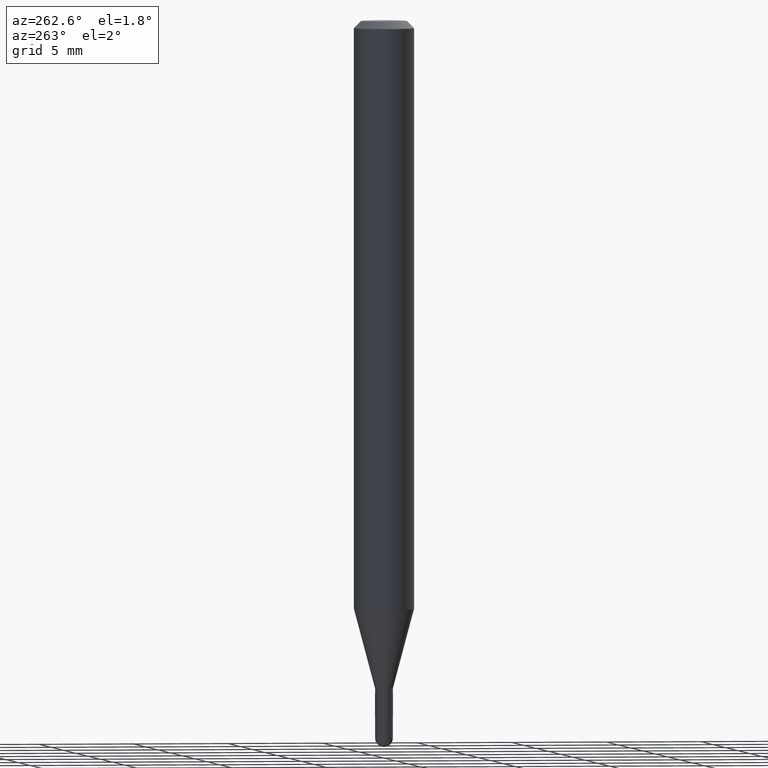
[diagram: clean part render]
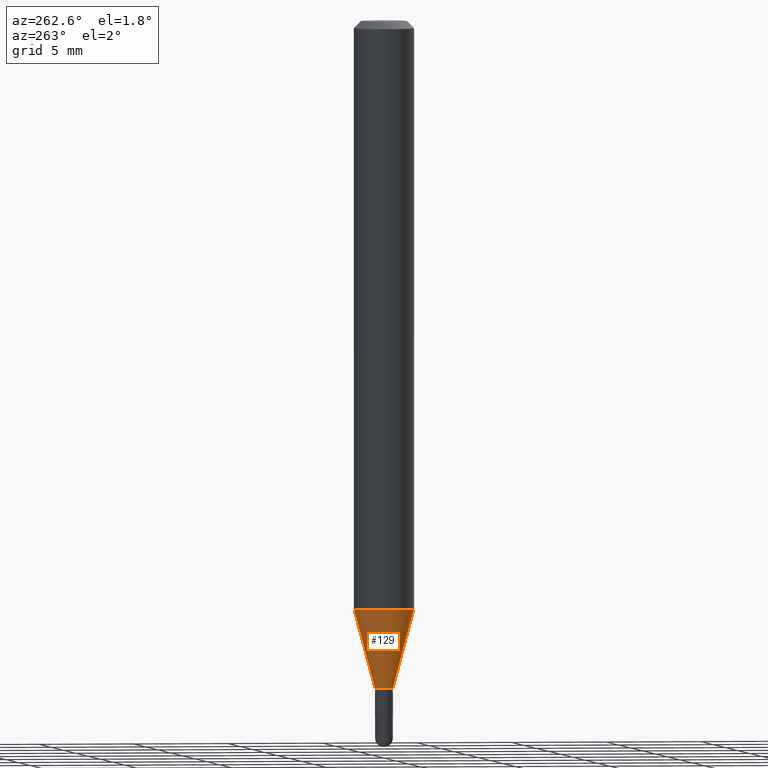
[diagram: same view with one face highlighted and labeled with its STEP entity id]
A machine part, auxiliary view. The second image highlights one B-rep face of the part: STEP entity #129.
In plain terms, the highlighted conical surface has half-angle 15 deg.
Its self-contained STEP definition (entity closure, byte-faithful):
#3 = CARTESIAN_POINT ( 'NONE',  ( -1.291848095371616572E-16, -0.01850000000000473835, -1.379000000000000226 ) ) ;
#8 = VERTEX_POINT ( 'NONE', #439 ) ;
#18 = VECTOR ( 'NONE', #106, 39.37007874015748143 ) ;
#38 = ORIENTED_EDGE ( 'NONE', *, *, #450, .F. ) ;
#58 = AXIS2_PLACEMENT_3D ( 'NONE', #400, #346, #384 ) ;
#76 = DIRECTION ( 'NONE',  ( -1.807323732225330928E-15, -0.2588190451025182970, 0.9659258262890689783 ) ) ;
#88 = DIRECTION ( 'NONE',  ( -2.445457916988369542E-29, 3.491496932792690860E-15, 1.000000000000000000 ) ) ;
#92 = CIRCLE ( 'NONE', #231, 0.06250000000000000000 ) ;
#104 = ORIENTED_EDGE ( 'NONE', *, *, #147, .T. ) ;
#106 = DIRECTION ( 'NONE',  ( 1.839019923739601104E-15, 0.2588190451025250693, 0.9659258262890670910 ) ) ;
#118 = CARTESIAN_POINT ( 'NONE',  ( 3.372286467526962269E-29, -4.814774270321121569E-15, -1.379000000000000226 ) ) ;
#129 = ADVANCED_FACE ( 'NONE', ( #237 ), #440, .T. ) ;
#147 = EDGE_CURVE ( 'NONE', #8, #150, #421, .T. ) ;
#150 = VERTEX_POINT ( 'NONE', #3 ) ;
#167 = EDGE_LOOP ( 'NONE', ( #38, #104, #306, #216 ) ) ;
#170 = DIRECTION ( 'NONE',  ( -2.445457916988369542E-29, 3.491496932792690860E-15, 1.000000000000000000 ) ) ;
#216 = ORIENTED_EDGE ( 'NONE', *, *, #332, .F. ) ;
#231 = AXIS2_PLACEMENT_3D ( 'NONE', #322, #170, #428 ) ;
#237 = FACE_OUTER_BOUND ( 'NONE', #167, .T. ) ;
#250 = LINE ( 'NONE', #374, #341 ) ;
#275 = AXIS2_PLACEMENT_3D ( 'NONE', #118, #88, #438 ) ;
#300 = VERTEX_POINT ( 'NONE', #311 ) ;
#306 = ORIENTED_EDGE ( 'NONE', *, *, #353, .T. ) ;
#310 = VERTEX_POINT ( 'NONE', #399 ) ;
#311 = CARTESIAN_POINT ( 'NONE',  ( -4.364351673553620871E-16, -0.06250000000000427436, -1.214789764466969624 ) ) ;
#322 = CARTESIAN_POINT ( 'NONE',  ( 2.970717246992188659E-29, -4.241434736624381268E-15, -1.214789764466970068 ) ) ;
#332 = EDGE_CURVE ( 'NONE', #310, #300, #92, .T. ) ;
#341 = VECTOR ( 'NONE', #76, 39.37007874015748143 ) ;
#346 = DIRECTION ( 'NONE',  ( -2.445457916988369542E-29, 3.491496932792690860E-15, 1.000000000000000000 ) ) ;
#353 = EDGE_CURVE ( 'NONE', #150, #300, #250, .T. ) ;
#374 = CARTESIAN_POINT ( 'NONE',  ( -1.291848095371616572E-16, -0.01850000000000473835, -1.379000000000000226 ) ) ;
#378 = LINE ( 'NONE', #473, #18 ) ;
#384 = DIRECTION ( 'NONE',  ( -6.982962677686265922E-15, -1.000000000000000000, 0.000000000000000000 ) ) ;
#399 = CARTESIAN_POINT ( 'NONE',  ( 4.440892098500921985E-16, 0.06249999999999573952, -1.214789764466970068 ) ) ;
#400 = CARTESIAN_POINT ( 'NONE',  ( 3.372286467526962269E-29, -4.814774270321121569E-15, -1.379000000000000226 ) ) ;
#421 = CIRCLE ( 'NONE', #58, 0.01849999999999992276 ) ;
#428 = DIRECTION ( 'NONE',  ( -6.982962677686265922E-15, -1.000000000000000000, 4.370956789862821150E-15 ) ) ;
#438 = DIRECTION ( 'NONE',  ( -6.982962677686265922E-15, -1.000000000000000000, 0.000000000000000000 ) ) ;
#439 = CARTESIAN_POINT ( 'NONE',  ( 2.877698079828721388E-16, 0.01849999999999510716, -1.379000000000000226 ) ) ;
#440 = CONICAL_SURFACE ( 'NONE', #275, 0.01849999999999992276, 0.2617993877991502960 ) ;
#450 = EDGE_CURVE ( 'NONE', #8, #310, #378, .T. ) ;
#473 = CARTESIAN_POINT ( 'NONE',  ( 1.314504061156517093E-16, 0.01849999999999510716, -1.379000000000000226 ) ) ;